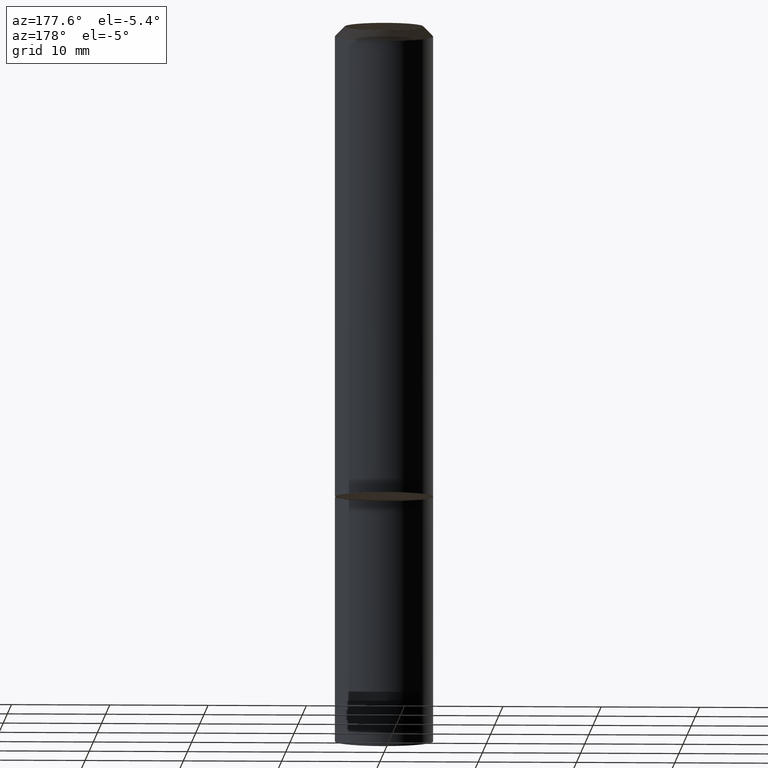
[diagram: clean part render]
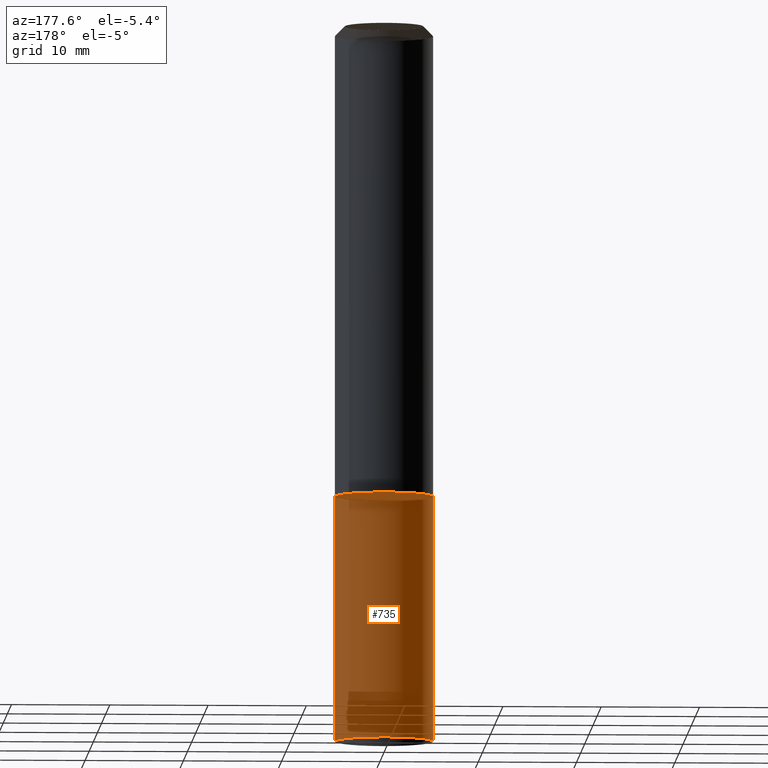
[diagram: same view with one face highlighted and labeled with its STEP entity id]
A machine part, auxiliary view. The second image highlights one B-rep face of the part: STEP entity #735.
In plain terms, the highlighted face is a freeform B-spline surface patch.
Its self-contained STEP definition (entity closure, byte-faithful):
#410=CARTESIAN_POINT('',(0.0,5.0,-25.0));
#663=CARTESIAN_POINT('',(5.0,0.0,-25.0));
#664=CARTESIAN_POINT('',(5.0,5.0,-25.0));
#665=CARTESIAN_POINT('',(-5.0,5.0,-25.0));
#666=CARTESIAN_POINT('',(-5.0,0.0,-25.0));
#667=CARTESIAN_POINT('',(5.0,0.0,0.0));
#668=CARTESIAN_POINT('',(5.0,5.0,0.0));
#669=CARTESIAN_POINT('',(0.0,5.0,0.0));
#670=CARTESIAN_POINT('',(-5.0,5.0,0.0));
#671=CARTESIAN_POINT('',(-5.0,0.0,0.0));
#716=(
BOUNDED_SURFACE()
B_SPLINE_SURFACE(1,2,(
(#663,#664,#410,#665,#666),
(#667,#668,#669,#670,#671)
), .UNSPECIFIED.,.F.,.F.,.F.)
B_SPLINE_SURFACE_WITH_KNOTS((2,2),(3,2,3),(
0.0,1.0),(
0.0,0.5,1.0), .UNSPECIFIED.)
GEOMETRIC_REPRESENTATION_ITEM()
RATIONAL_B_SPLINE_SURFACE(((1.0,0.707106781187,1.0,0.707106781187,1.0),
(1.0,0.707106781187,1.0,0.707106781187,1.0)
))
REPRESENTATION_ITEM('')
SURFACE()
);
#717=(
BOUNDED_CURVE()
B_SPLINE_CURVE(2,(#666,#665,#410,#664,#663),.UNSPECIFIED.,.F.,.F.)
B_SPLINE_CURVE_WITH_KNOTS((3,2,3),
(0.0,0.5,1.0),.UNSPECIFIED.)
CURVE()
GEOMETRIC_REPRESENTATION_ITEM()
RATIONAL_B_SPLINE_CURVE((1.0,0.707106781187,1.0,0.707106781187,1.0))
REPRESENTATION_ITEM('')
);
#718=(
BOUNDED_CURVE()
B_SPLINE_CURVE(1,(#663,#667),.UNSPECIFIED.,.F.,.F.)
B_SPLINE_CURVE_WITH_KNOTS((2,2),
(0.0,1.0),.UNSPECIFIED.)
CURVE()
GEOMETRIC_REPRESENTATION_ITEM()
RATIONAL_B_SPLINE_CURVE((1.0,1.0))
REPRESENTATION_ITEM('')
);
#719=(
BOUNDED_CURVE()
B_SPLINE_CURVE(2,(#667,#668,#669,#670,#671),.UNSPECIFIED.,.F.,.F.)
B_SPLINE_CURVE_WITH_KNOTS((3,2,3),
(0.0,0.5,1.0),.UNSPECIFIED.)
CURVE()
GEOMETRIC_REPRESENTATION_ITEM()
RATIONAL_B_SPLINE_CURVE((1.0,0.707106781187,1.0,0.707106781187,1.0))
REPRESENTATION_ITEM('')
);
#720=(
BOUNDED_CURVE()
B_SPLINE_CURVE(1,(#671,#666),.UNSPECIFIED.,.F.,.F.)
B_SPLINE_CURVE_WITH_KNOTS((2,2),
(0.0,1.0),.UNSPECIFIED.)
CURVE()
GEOMETRIC_REPRESENTATION_ITEM()
RATIONAL_B_SPLINE_CURVE((1.0,1.0))
REPRESENTATION_ITEM('')
);
#721=VERTEX_POINT('',#663);
#722=VERTEX_POINT('',#666);
#723=VERTEX_POINT('',#667);
#724=VERTEX_POINT('',#671);
#725=EDGE_CURVE('',#722,#721,#717,.T.);
#726=EDGE_CURVE('',#721,#723,#718,.T.);
#727=EDGE_CURVE('',#723,#724,#719,.T.);
#728=EDGE_CURVE('',#724,#722,#720,.T.);
#729=ORIENTED_EDGE('',*,*,#725,.T.);
#730=ORIENTED_EDGE('',*,*,#726,.T.);
#731=ORIENTED_EDGE('',*,*,#727,.T.);
#732=ORIENTED_EDGE('',*,*,#728,.T.);
#733=EDGE_LOOP('',(#729,#730,#731,#732));
#734=FACE_OUTER_BOUND('',#733,.T.);
#735=ADVANCED_FACE('',(#734),#716,.T.);